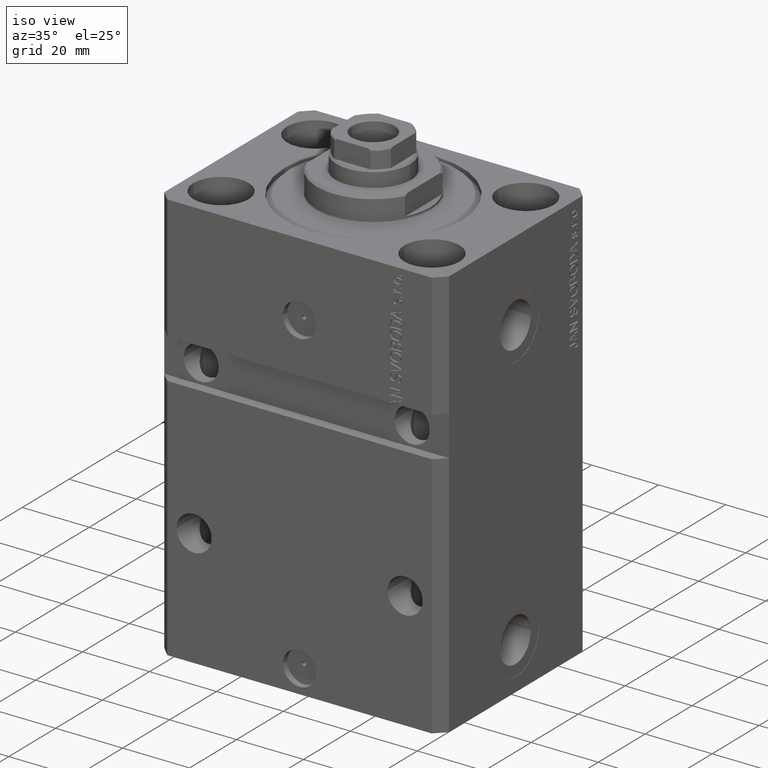
[diagram: clean part render]
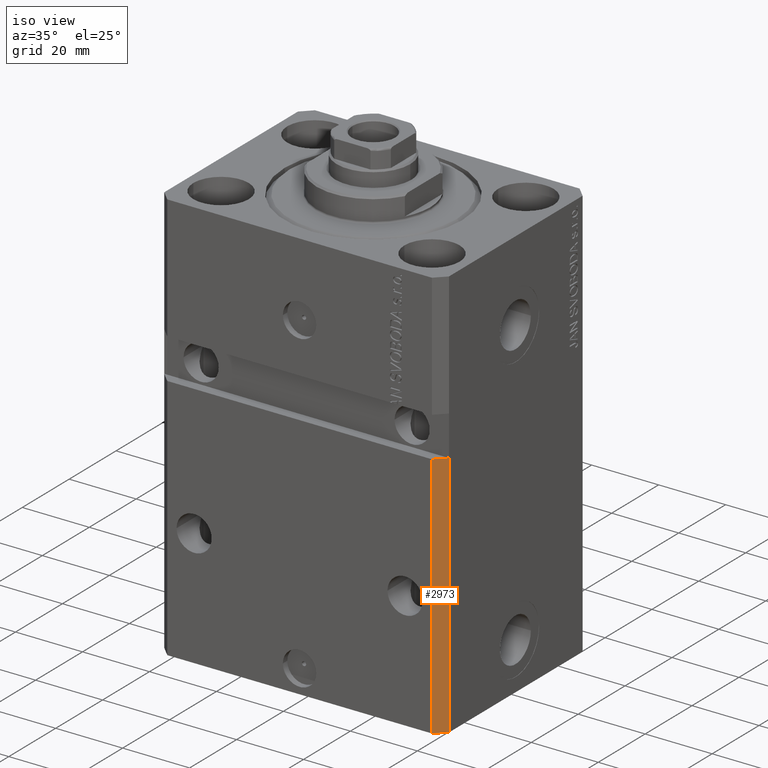
[diagram: same view with one face highlighted and labeled with its STEP entity id]
A machine part, iso view. The second image highlights one B-rep face of the part: STEP entity #2973.
In plain terms, the highlighted planar face has unit normal (0.7071, -0.7071, 0).
Its self-contained STEP definition (entity closure, byte-faithful):
#453 = PLANE ( 'NONE',  #35374 ) ;
#1079 = CARTESIAN_POINT ( 'NONE',  ( 42.50000000000001421, -28.49999999999999289, -48.99999999999997868 ) ) ;
#2736 = CARTESIAN_POINT ( 'NONE',  ( 39.50000000000000000, -31.50000000000000711, -48.99999999999997158 ) ) ;
#2973 = ADVANCED_FACE ( 'NONE', ( #23563 ), #453, .T. ) ;
#5998 = ORIENTED_EDGE ( 'NONE', *, *, #44438, .T. ) ;
#6525 = ORIENTED_EDGE ( 'NONE', *, *, #13675, .F. ) ;
#6890 = EDGE_CURVE ( 'NONE', #18573, #6973, #20854, .T. ) ;
#6973 = VERTEX_POINT ( 'NONE', #40752 ) ;
#13221 = DIRECTION ( 'NONE',  ( 0.7071067811865483499, 0.7071067811865466846, 0.000000000000000000 ) ) ;
#13675 = EDGE_CURVE ( 'NONE', #18573, #20759, #40290, .T. ) ;
#15452 = CARTESIAN_POINT ( 'NONE',  ( 39.50000000000000711, -31.50000000000000000, -123.0000000000000000 ) ) ;
#17175 = CARTESIAN_POINT ( 'NONE',  ( 39.50000000000000711, -31.50000000000000000, -123.0000000000000000 ) ) ;
#18573 = VERTEX_POINT ( 'NONE', #27766 ) ;
#18721 = CARTESIAN_POINT ( 'NONE',  ( 42.50000000000000711, -28.50000000000000355, -123.0000000000000000 ) ) ;
#19388 = DIRECTION ( 'NONE',  ( 0.7071067811865467956, -0.7071067811865483499, 0.000000000000000000 ) ) ;
#20634 = VECTOR ( 'NONE', #25028, 1000.000000000000000 ) ;
#20759 = VERTEX_POINT ( 'NONE', #34918 ) ;
#20854 = LINE ( 'NONE', #46920, #46348 ) ;
#23563 = FACE_OUTER_BOUND ( 'NONE', #46203, .T. ) ;
#24630 = LINE ( 'NONE', #2736, #44445 ) ;
#25028 = DIRECTION ( 'NONE',  ( 0.000000000000000000, 0.000000000000000000, 1.000000000000000000 ) ) ;
#27604 = ORIENTED_EDGE ( 'NONE', *, *, #6890, .T. ) ;
#27766 = CARTESIAN_POINT ( 'NONE',  ( 39.50000000000000711, -31.50000000000000000, -123.0000000000000000 ) ) ;
#28081 = DIRECTION ( 'NONE',  ( 0.7071067811865483499, 0.7071067811865467956, 1.154479749032188978E-16 ) ) ;
#28436 = VECTOR ( 'NONE', #33971, 1000.000000000000000 ) ;
#29933 = EDGE_CURVE ( 'NONE', #20759, #36948, #24630, .T. ) ;
#31028 = LINE ( 'NONE', #18721, #28436 ) ;
#31196 = DIRECTION ( 'NONE',  ( 0.7071067811865483499, 0.7071067811865467956, 0.000000000000000000 ) ) ;
#33971 = DIRECTION ( 'NONE',  ( 0.000000000000000000, 0.000000000000000000, 1.000000000000000000 ) ) ;
#34918 = CARTESIAN_POINT ( 'NONE',  ( 39.50000000000001421, -31.49999999999999289, -48.99999999999997868 ) ) ;
#35374 = AXIS2_PLACEMENT_3D ( 'NONE', #15452, #19388, #31196 ) ;
#36948 = VERTEX_POINT ( 'NONE', #1079 ) ;
#39610 = ORIENTED_EDGE ( 'NONE', *, *, #29933, .F. ) ;
#40290 = LINE ( 'NONE', #17175, #20634 ) ;
#40752 = CARTESIAN_POINT ( 'NONE',  ( 42.50000000000000711, -28.50000000000000355, -123.0000000000000000 ) ) ;
#44438 = EDGE_CURVE ( 'NONE', #6973, #36948, #31028, .T. ) ;
#44445 = VECTOR ( 'NONE', #28081, 1000.000000000000000 ) ;
#46203 = EDGE_LOOP ( 'NONE', ( #39610, #6525, #27604, #5998 ) ) ;
#46348 = VECTOR ( 'NONE', #13221, 1000.000000000000000 ) ;
#46920 = CARTESIAN_POINT ( 'NONE',  ( 39.50000000000000711, -31.50000000000000000, -123.0000000000000000 ) ) ;